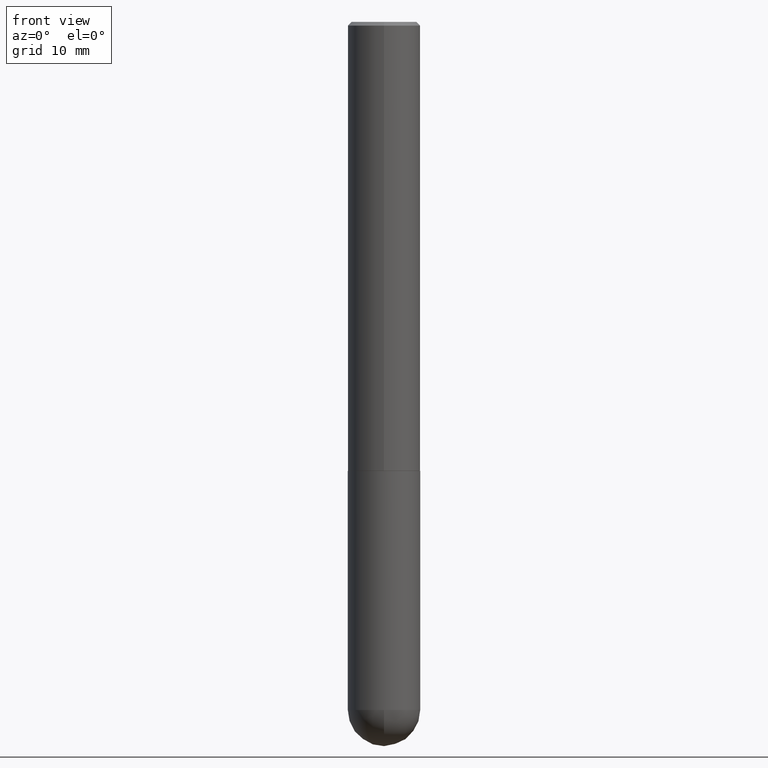
[diagram: clean part render]
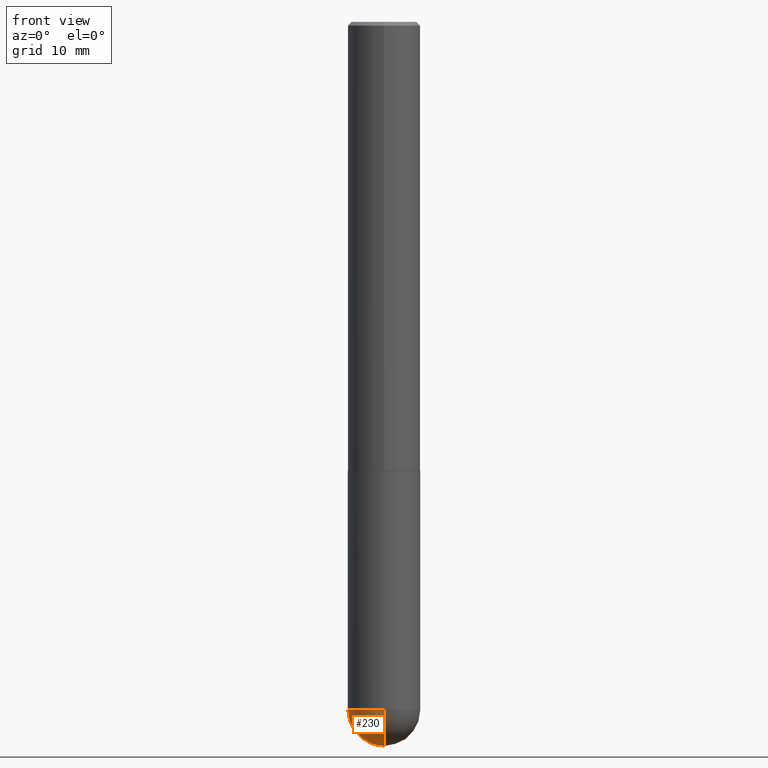
[diagram: same view with one face highlighted and labeled with its STEP entity id]
A machine part, front view. The second image highlights one B-rep face of the part: STEP entity #230.
In plain terms, the highlighted spherical surface has radius 5 mm.
Its self-contained STEP definition (entity closure, byte-faithful):
#1 = DIRECTION ( 'NONE',  ( -7.105427357601001070E-15, -1.000000000000000000, 0.000000000000000000 ) ) ;
#4 = AXIS2_PLACEMENT_3D ( 'NONE', #114, #113, #147 ) ;
#9 = FACE_OUTER_BOUND ( 'NONE', #347, .T. ) ;
#11 = CARTESIAN_POINT ( 'NONE',  ( -1.398703375343667858E-15, -0.1968500000000133754, -3.740150000000000308 ) ) ;
#18 = EDGE_CURVE ( 'NONE', #346, #255, #348, .T. ) ;
#25 = CARTESIAN_POINT ( 'NONE',  ( 8.815300377539453183E-29, -1.353284629761424370E-14, -3.740150000000000308 ) ) ;
#39 = VERTEX_POINT ( 'NONE', #259 ) ;
#56 = AXIS2_PLACEMENT_3D ( 'NONE', #68, #394, #163 ) ;
#68 = CARTESIAN_POINT ( 'NONE',  ( 9.146420155453340551E-29, -1.305866392947419340E-14, -3.740150000000000752 ) ) ;
#94 = EDGE_CURVE ( 'NONE', #39, #287, #401, .T. ) ;
#108 = CARTESIAN_POINT ( 'NONE',  ( -0.1968499999999999694, -9.391806989384456184E-15, -3.740150000000000752 ) ) ;
#113 = DIRECTION ( 'NONE',  ( 1.000000000000000000, -6.982962677686265922E-15, 4.883557194083112340E-29 ) ) ;
#114 = CARTESIAN_POINT ( 'NONE',  ( 8.815300377539453183E-29, -1.353284629761424370E-14, -3.740150000000000308 ) ) ;
#120 = AXIS2_PLACEMENT_3D ( 'NONE', #403, #143, #144 ) ;
#123 = ORIENTED_EDGE ( 'NONE', *, *, #94, .T. ) ;
#140 = DIRECTION ( 'NONE',  ( -1.000000000000000000, 7.105427357601001070E-15, -4.926315508542082329E-29 ) ) ;
#142 = EDGE_CURVE ( 'NONE', #255, #287, #237, .T. ) ;
#143 = DIRECTION ( 'NONE',  ( -1.000000000000000000, 6.982962677686265922E-15, -4.883557194083113462E-29 ) ) ;
#144 = DIRECTION ( 'NONE',  ( 6.982962677686265922E-15, 1.000000000000000000, -2.775563112689114723E-15 ) ) ;
#147 = DIRECTION ( 'NONE',  ( 6.982962677686265922E-15, 1.000000000000000000, 0.000000000000000000 ) ) ;
#151 = ORIENTED_EDGE ( 'NONE', *, *, #18, .F. ) ;
#163 = DIRECTION ( 'NONE',  ( 1.000000000000000000, -6.982962677686269866E-15, 0.000000000000000000 ) ) ;
#204 = CARTESIAN_POINT ( 'NONE',  ( 9.146420155453340551E-29, -1.305866392947419340E-14, -3.740150000000000752 ) ) ;
#214 = EDGE_CURVE ( 'NONE', #39, #346, #339, .T. ) ;
#230 = ADVANCED_FACE ( 'NONE', ( #9 ), #272, .T. ) ;
#236 = DIRECTION ( 'NONE',  ( 1.000000000000000000, -6.982962677686269866E-15, 0.000000000000000000 ) ) ;
#237 = CIRCLE ( 'NONE', #332, 0.1968499999999999694 ) ;
#241 = CARTESIAN_POINT ( 'NONE',  ( 1.374596203102631736E-15, 0.1968499999999867855, -3.740150000000001196 ) ) ;
#255 = VERTEX_POINT ( 'NONE', #108 ) ;
#259 = CARTESIAN_POINT ( 'NONE',  ( 9.305107886238245984E-29, -1.420809081304490838E-14, -3.937000000000000721 ) ) ;
#272 = SPHERICAL_SURFACE ( 'NONE', #120, 0.1968500000000001360 ) ;
#281 = ORIENTED_EDGE ( 'NONE', *, *, #214, .F. ) ;
#287 = VERTEX_POINT ( 'NONE', #11 ) ;
#297 = AXIS2_PLACEMENT_3D ( 'NONE', #25, #140, #1 ) ;
#319 = ORIENTED_EDGE ( 'NONE', *, *, #142, .F. ) ;
#332 = AXIS2_PLACEMENT_3D ( 'NONE', #204, #335, #236 ) ;
#335 = DIRECTION ( 'NONE',  ( -2.445468806185136597E-29, 3.491481338843145583E-15, 1.000000000000000000 ) ) ;
#339 = CIRCLE ( 'NONE', #4, 0.1968500000000001360 ) ;
#346 = VERTEX_POINT ( 'NONE', #241 ) ;
#347 = EDGE_LOOP ( 'NONE', ( #281, #123, #319, #151 ) ) ;
#348 = CIRCLE ( 'NONE', #56, 0.1968499999999999694 ) ;
#394 = DIRECTION ( 'NONE',  ( -2.445468806185136597E-29, 3.491481338843145583E-15, 1.000000000000000000 ) ) ;
#401 = CIRCLE ( 'NONE', #297, 0.1968500000000001360 ) ;
#403 = CARTESIAN_POINT ( 'NONE',  ( 8.815300377539453183E-29, -1.353284629761424370E-14, -3.740150000000000308 ) ) ;